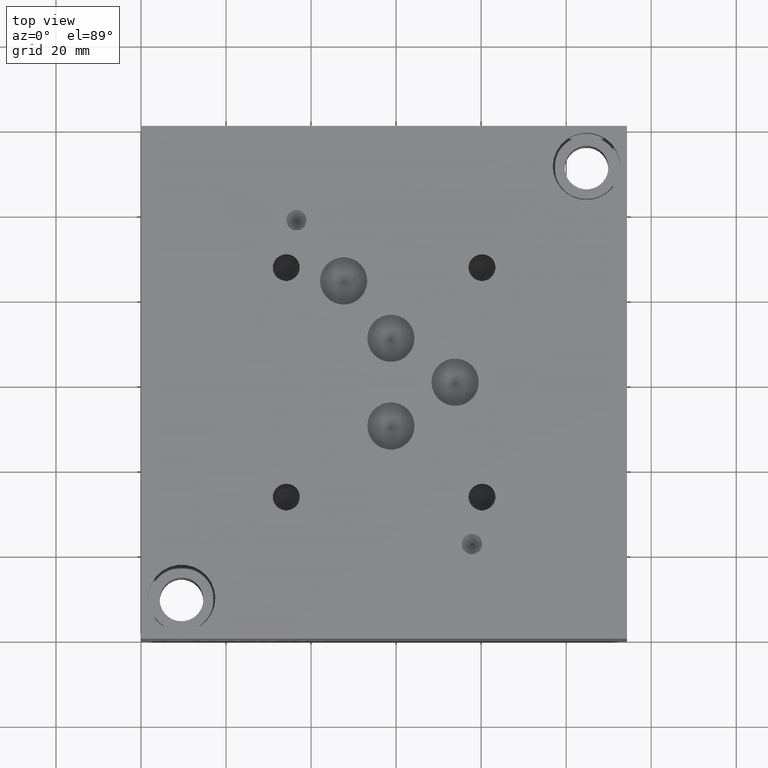
[diagram: clean part render]
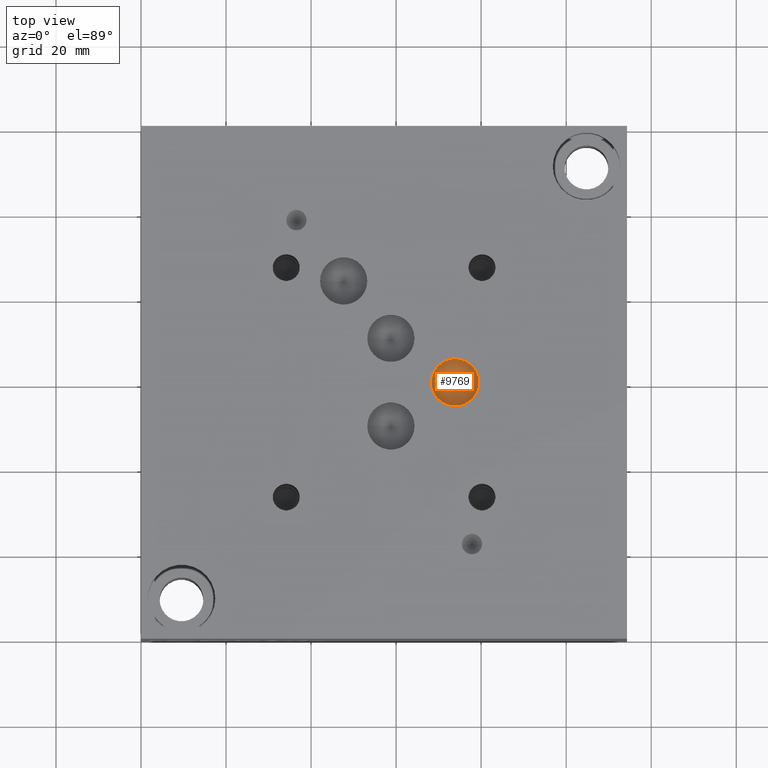
[diagram: same view with one face highlighted and labeled with its STEP entity id]
A machine part, top view. The second image highlights one B-rep face of the part: STEP entity #9769.
In plain terms, the highlighted conical surface has half-angle 60 deg.
Its self-contained STEP definition (entity closure, byte-faithful):
#55=CONICAL_SURFACE('',#10220,2.7813,1.0471975511966);
#124=CIRCLE('',#10221,5.5626);
#125=CIRCLE('',#10222,5.5626);
#1064=FACE_OUTER_BOUND('',#1611,.T.);
#1611=EDGE_LOOP('',(#8406,#8407,#8408,#8409));
#2625=LINE('',#16419,#3614);
#3614=VECTOR('',#12078,2.7813);
#4500=VERTEX_POINT('',#16415);
#4501=VERTEX_POINT('',#16416);
#4502=VERTEX_POINT('',#16418);
#5821=EDGE_CURVE('',#4500,#4501,#124,.T.);
#5822=EDGE_CURVE('',#4501,#4502,#2625,.T.);
#5823=EDGE_CURVE('',#4501,#4500,#125,.T.);
#8406=ORIENTED_EDGE('',*,*,#5821,.T.);
#8407=ORIENTED_EDGE('',*,*,#5822,.T.);
#8408=ORIENTED_EDGE('',*,*,#5822,.F.);
#8409=ORIENTED_EDGE('',*,*,#5823,.T.);
#9769=ADVANCED_FACE('',(#1064),#55,.F.);
#10220=AXIS2_PLACEMENT_3D('',#16414,#12074,#12075);
#10221=AXIS2_PLACEMENT_3D('',#16417,#12076,#12077);
#10222=AXIS2_PLACEMENT_3D('',#16420,#12079,#12080);
#12074=DIRECTION('center_axis',(0.,0.,1.));
#12075=DIRECTION('ref_axis',(1.,0.,0.));
#12076=DIRECTION('center_axis',(0.,0.,1.));
#12077=DIRECTION('ref_axis',(1.,0.,0.));
#12078=DIRECTION('',(0.866025403784439,1.06057523872491E-16,-0.5));
#12079=DIRECTION('center_axis',(0.,0.,1.));
#12080=DIRECTION('ref_axis',(1.,0.,0.));
#16414=CARTESIAN_POINT('Origin',(73.8632,60.3377,39.6326456963029));
#16415=CARTESIAN_POINT('',(79.4258,60.3377,41.23843));
#16416=CARTESIAN_POINT('',(68.3006,60.3377,41.23843));
#16417=CARTESIAN_POINT('Origin',(73.8632,60.3377,41.23843));
#16418=CARTESIAN_POINT('',(73.8632,60.3377,38.0268613926058));
#16419=CARTESIAN_POINT('',(71.0819,60.3377,39.6326456963029));
#16420=CARTESIAN_POINT('Origin',(73.8632,60.3377,41.23843));